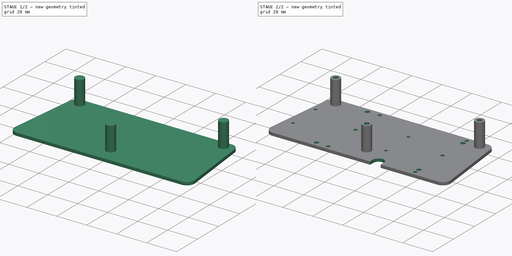
[diagram: build sequence overview — one tinted view per stage of 2, left to right]
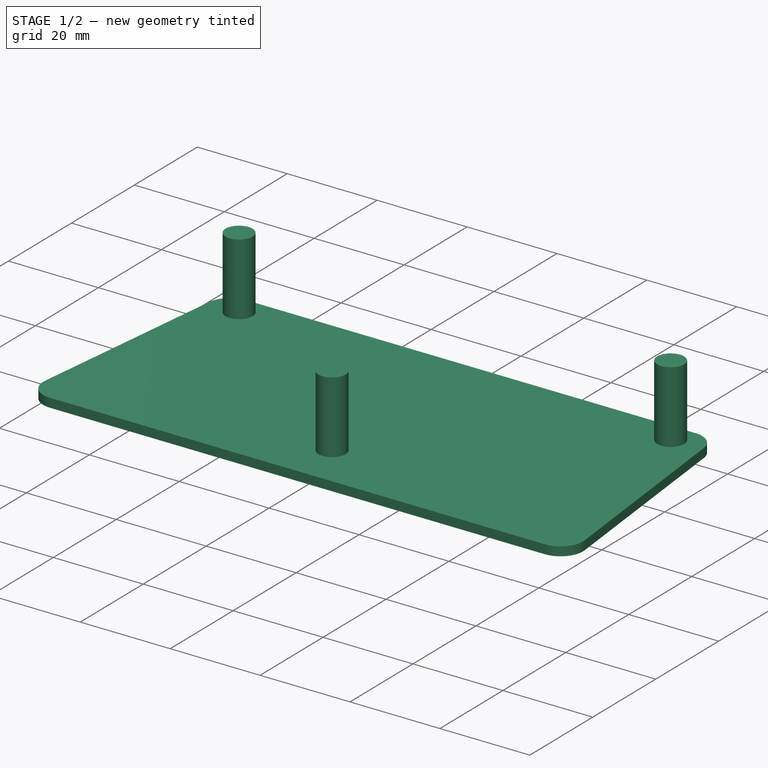
[diagram: stage 1 of 2 — iso view after this stage's code; geometry added in this stage tinted green]
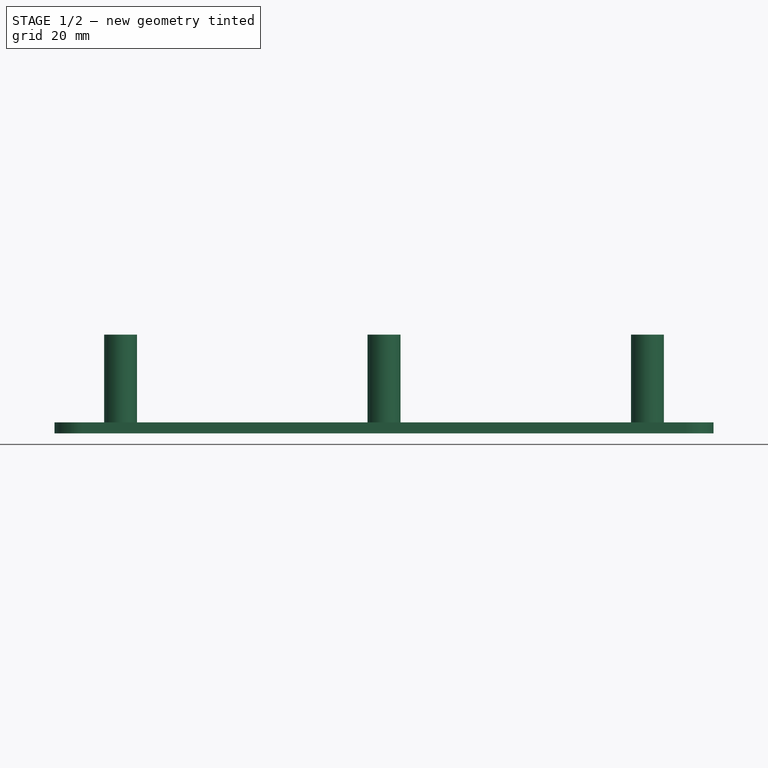
[diagram: stage 1 of 2 — front view after this stage's code; geometry added in this stage tinted green]
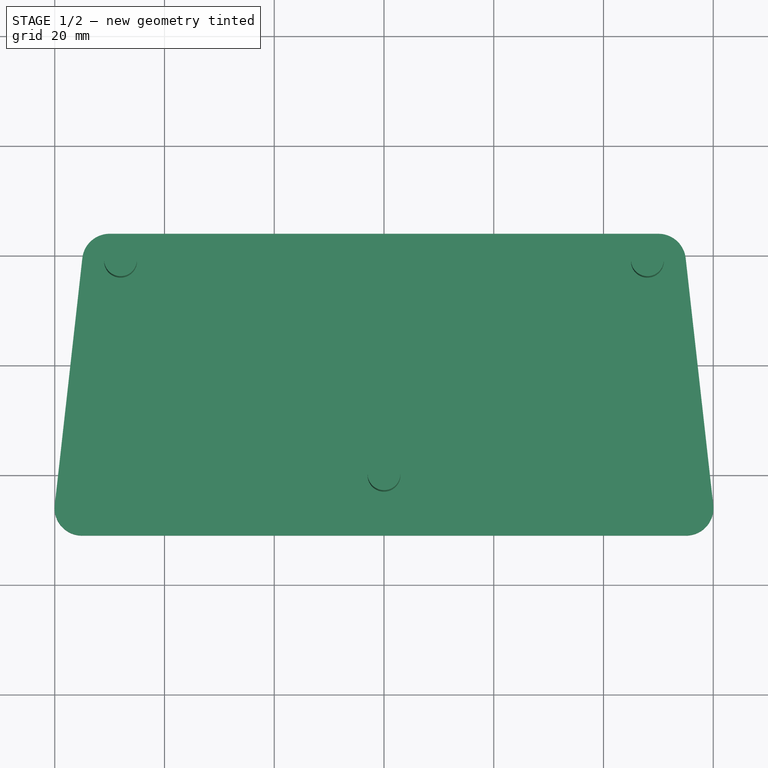
[diagram: stage 1 of 2 — top view after this stage's code; geometry added in this stage tinted green]
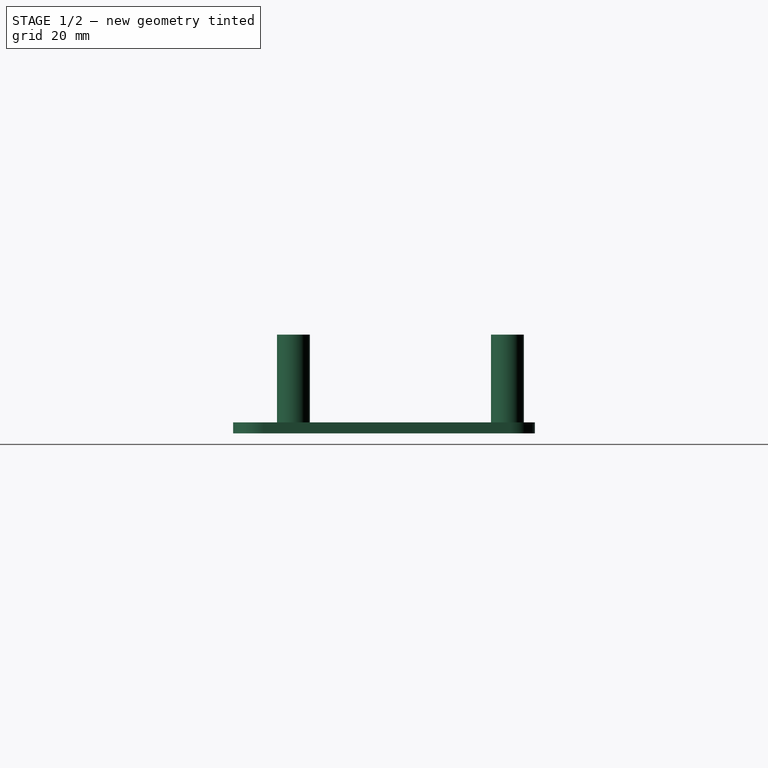
[diagram: stage 1 of 2 — right view after this stage's code; geometry added in this stage tinted green]
FCSTD DOCUMENT  (FreeCAD 0.20R)
Label: T07_controller_standoff
License: All rights reserved
LicenseURL: http://en.wikipedia.org/wiki/All_rights_reserved
objects: Sketcher::SketchObject×3, PartDesign::Pad×2, PartDesign::Pocket×1, PartDesign::Body×1
note: 10 computed .brp shape members not serialized (recipe doc carries the construction recipe); baked Part::Feature solids carry a one-line shape summary decoded from their .brp

FEATURE [Sketcher::SketchObject] Sketch
  FullyConstrained = true
  MapMode = 5
  Support = -> [XY_Plane]
  sketch-geometry (8):
    g0: ArcOfCircle CenterX=-50 CenterY=39 CenterZ=0 NormalX=0 NormalY=0 NormalZ=1 AngleXU=0 Radius=5 StartAngle=1.5708 EndAngle=3.03026
    g1: ArcOfCircle CenterX=50 CenterY=39 CenterZ=0 NormalX=0 NormalY=0 NormalZ=1 AngleXU=0 Radius=5 StartAngle=0.111337 EndAngle=1.5708
    g2: LineSegment StartX=-50 StartY=44 StartZ=0 EndX=50 EndY=44 EndZ=0
    g3: LineSegment StartX=54.969 StartY=39.5555 StartZ=0 EndX=60 EndY=-5.44447 EndZ=0
    g4: LineSegment StartX=-54.969 StartY=39.5555 StartZ=0 EndX=-60 EndY=-5.44447 EndZ=0
    g5: LineSegment StartX=-55.031 StartY=-11 StartZ=0 EndX=55.031 EndY=-11 EndZ=0
    g6: ArcOfCircle CenterX=55.031 CenterY=-6 CenterZ=0 NormalX=0 NormalY=0 NormalZ=1 AngleXU=0 Radius=5 StartAngle=4.71239 EndAngle=6.39452
    g7: ArcOfCircle CenterX=-55.031 CenterY=-6 CenterZ=0 NormalX=0 NormalY=0 NormalZ=1 AngleXU=0 Radius=5 StartAngle=3.03026 EndAngle=4.71239
  constraints (18):
    c: Symmetric(g0,g1,g-2)
    c: Coincident(g2,g1)
    c: Symmetric(g0,g1,g-2)
    c: Tangent(g2,g0) = 1.5708
    c: Radius(g1) = 5
    c: Symmetric(g3,g4,g-2)
    c: Tangent(g3,g1) = 1.5708
    c: Tangent(g4,g0) = -1.5708
    c: Equal(g0,g7)
    c: Equal(g1,g6)
    c: Tangent(g6,g3) = 1.5708
    c: Tangent(g7,g4) = -1.5708
    c: Tangent(g6,g5) = -1.5708
    c: DistanceX(g4,g3) = 120
    c: DistanceY(g6,g-1) = 6
    c: DistanceY(g-1,g1) = 39
    c: DistanceX(g0,g1) = 100
    c: Tangent(g5,g7) = -1.5708
FEATURE [PartDesign::Pad] Pad
  Direction = (0,0,1)
  Length = 2
  Length2 = 10
  Profile = -> Sketch
  ReferenceAxis = -> Sketch [N_Axis]
  Type = 0
FEATURE [Sketcher::SketchObject] Sketch001
  FullyConstrained = true
  MapMode = 5
  Placement = pos=(0,0,2) rot=(0,0,1;0rad)
  sketch-geometry (3):
    g0: Circle CenterX=0 CenterY=0 CenterZ=0 NormalX=0 NormalY=0 NormalZ=1 AngleXU=0 Radius=3
    g1: Circle CenterX=-48 CenterY=39 CenterZ=0 NormalX=0 NormalY=0 NormalZ=1 AngleXU=0 Radius=3
    g2: Circle CenterX=48 CenterY=39 CenterZ=0 NormalX=0 NormalY=0 NormalZ=1 AngleXU=0 Radius=3
  constraints (7):
    c: Coincident(g0,g-1)
    c: Symmetric(g2,g1,g-2)
    c: DistanceY(g0,g2) = 39
    c: DistanceX(g0,g2) = 48
    c: Equal(g1,g2)
    c: Equal(g2,g0)
    c: Diameter(g1) = 6
FEATURE [Sketcher::SketchObject] Sketch002
  FullyConstrained = true
  MapMode = 5
  Placement = pos=(0,0,0) rot=(1,0,0;3.14159rad)
  sketch-geometry (37):
    g0: Circle CenterX=0 CenterY=0 CenterZ=0 NormalX=0 NormalY=0 NormalZ=1 AngleXU=0 Radius=1.6
    g1: Circle CenterX=-48 CenterY=-39 CenterZ=0 NormalX=0 NormalY=0 NormalZ=1 AngleXU=0 Radius=1.6
    g2: Circle CenterX=48 CenterY=-39 CenterZ=0 NormalX=0 NormalY=0 NormalZ=1 AngleXU=0 Radius=1.6
    g3: LineSegment StartX=-53 StartY=-27 StartZ=0 EndX=9 EndY=-27 EndZ=0
    g4: LineSegment StartX=9 StartY=-27 StartZ=0 EndX=9 EndY=-5.5 EndZ=0
    g5: LineSegment StartX=9 StartY=-5.5 StartZ=0 EndX=-53 EndY=-5.5 EndZ=0
    g6: LineSegment StartX=-53 StartY=-5.5 StartZ=0 EndX=-53 EndY=-27 EndZ=0
    g7: LineSegment StartX=-20 StartY=8 StartZ=0 EndX=38 EndY=8 EndZ=0
    g8: LineSegment StartX=38 StartY=8 StartZ=0 EndX=38 EndY=-41 EndZ=0
    g9: LineSegment StartX=38 StartY=-41 StartZ=0 EndX=-20 EndY=-41 EndZ=0
    g10: LineSegment StartX=-20 StartY=-41 StartZ=0 EndX=-20 EndY=8 EndZ=0
    g11: Circle CenterX=9 CenterY=-5.5 CenterZ=0 NormalX=0 NormalY=0 NormalZ=1 AngleXU=0 Radius=1
    g12: Circle CenterX=9 CenterY=-27 CenterZ=0 NormalX=0 NormalY=0 NormalZ=1 AngleXU=0 Radius=1
    g13: Circle CenterX=38 CenterY=8 CenterZ=0 NormalX=0 NormalY=0 NormalZ=1 AngleXU=0 Radius=1.2
    g14: Circle CenterX=38 CenterY=-41 CenterZ=0 NormalX=0 NormalY=0 NormalZ=1 AngleXU=0 Radius=1.2
    g15: Circle CenterX=-20 CenterY=-41 CenterZ=0 NormalX=0 NormalY=0 NormalZ=1 AngleXU=0 Radius=1.2
    g16: Circle CenterX=-53 CenterY=-27 CenterZ=0 NormalX=0 NormalY=0 NormalZ=1 AngleXU=0 Radius=1
    g17: Circle CenterX=-53 CenterY=-5.5 CenterZ=0 NormalX=0 NormalY=0 NormalZ=1 AngleXU=0 Radius=1
    g18: Circle CenterX=-20 CenterY=8 CenterZ=0 NormalX=0 NormalY=0 NormalZ=1 AngleXU=0 Radius=1.2
    g19: LineSegment StartX=-43.5 StartY=11.5 StartZ=0 EndX=41.5 EndY=11.5 EndZ=0
    g20: LineSegment StartX=41.5 StartY=11.5 StartZ=0 EndX=41.5 EndY=-44.5 EndZ=0
    g21: LineSegment StartX=41.5 StartY=-44.5 StartZ=0 EndX=-43.5 EndY=-44.5 EndZ=0
    g22: LineSegment StartX=-43.5 StartY=-44.5 StartZ=0 EndX=-43.5 EndY=11.5 EndZ=0
    g23: ArcOfCircle CenterX=13.5 CenterY=12 CenterZ=0 NormalX=0 NormalY=0 NormalZ=1 AngleXU=0 Radius=3.5 StartAngle=0 EndAngle=3.14159
    g24: ArcOfCircle CenterX=13.5 CenterY=8 CenterZ=0 NormalX=0 NormalY=0 NormalZ=1 AngleXU=0 Radius=3.5 StartAngle=3.14159 EndAngle=6.28319
    g25: LineSegment StartX=10 StartY=12 StartZ=0 EndX=10 EndY=8 EndZ=0
    g26: LineSegment StartX=17 StartY=8 StartZ=0 EndX=17 EndY=12 EndZ=0
    g27: LineSegment StartX=-28.1 StartY=-16.455 StartZ=0 EndX=38 EndY=-16.455 EndZ=0
    g28: LineSegment StartX=-28.1 StartY=7.74 StartZ=0 EndX=-28.1 EndY=-40.65 EndZ=0
    g29: LineSegment StartX=38 StartY=4.5 StartZ=0 EndX=38 EndY=-37.41 EndZ=0
    g30: Circle CenterX=-28.1 CenterY=7.74 CenterZ=0 NormalX=0 NormalY=0 NormalZ=1 AngleXU=0 Radius=1.45
    g31: Circle CenterX=38 CenterY=4.5 CenterZ=0 NormalX=0 NormalY=0 NormalZ=1 AngleXU=0 Radius=1.45
    g32: Circle CenterX=-28.1 CenterY=-40.65 CenterZ=0 NormalX=0 NormalY=0 NormalZ=1 AngleXU=0 Radius=1.45
    g33: Circle CenterX=38 CenterY=-37.41 CenterZ=0 NormalX=0 NormalY=0 NormalZ=1 AngleXU=0 Radius=1.45
    g34: LineSegment StartX=-20 StartY=-18 StartZ=0 EndX=38 EndY=-18 EndZ=0
    g35: Circle CenterX=-20 CenterY=-18 CenterZ=0 NormalX=0 NormalY=0 NormalZ=1 AngleXU=0 Radius=1.2
    g36: Circle CenterX=38 CenterY=-18 CenterZ=0 NormalX=0 NormalY=0 NormalZ=1 AngleXU=0 Radius=1.2
  constraints (95):
    c: Coincident(g0,g-1)
    c: Symmetric(g1,g2,g-2)
    c: DistanceY(g1,g0) = 39
    c: DistanceX(g1,g0) = 48
    c: Equal(g1,g0)
    c: Equal(g0,g2)
    c: Diameter(g1) = 3.2
    c: Coincident(g3,g4)
    c: Coincident(g4,g5)
    c: Coincident(g5,g6)
    c: Coincident(g6,g3)
    c: Horizontal(g3)
    c: Horizontal(g5)
    c: Vertical(g4)
    c: Vertical(g6)
    c: Coincident(g7,g8)
    c: Coincident(g8,g9)
    c: Coincident(g9,g10)
    c: Coincident(g10,g7)
    c: Horizontal(g7)
    c: Horizontal(g9)
    c: Vertical(g8)
    c: Vertical(g10)
    c: DistanceY(g4,g4) = 21.5
    c: DistanceY(g8,g8) = 49
    c: DistanceX(g3,g3) = 62
    c: DistanceX(g9,g9) = 58
    c: DistanceX(g0,g7) = 38
    c: DistanceY(g4,g0) = 5.5
    c: DistanceY(g0,g7) = 8
    c: Coincident(g11,g4)
    c: Coincident(g12,g3)
    c: Coincident(g13,g7)
    c: Coincident(g14,g8)
    c: Coincident(g15,g9)
    c: Coincident(g16,g3)
    c: Coincident(g17,g5)
    c: Coincident(g18,g7)
    c: Equal(g17,g11)
    c: Equal(g17,g16)
    c: Equal(g11,g12)
    c: Equal(g18,g13)
    c: Equal(g18,g15)
    c: Equal(g13,g14)
    c: Diameter(g11) = 2
    c: Diameter(g13) = 2.4
    c: Coincident(g19,g20)
    c: Coincident(g20,g21)
    c: Coincident(g21,g22)
    c: Coincident(g22,g19)
    c: Horizontal(g19)
    c: Horizontal(g21)
    c: Vertical(g20)
    c: Vertical(g22)
    c: DistanceY(g20,g20) = 56
    c: DistanceY(g18,g19) = 3.5
    c: DistanceX(g21,g21) = 85
    c: DistanceX(g0,g11) = 9
    c: DistanceX(g13,g19) = 3.5
    c: Tangent(g23,g25) = -1.5708
    c: Tangent(g25,g24) = -1.5708
    c: Tangent(g24,g26) = -1.5708
    c: Tangent(g26,g23) = -1.5708
    c: Equal(g23,g24)
    c: Vertical(g25)
    c: Diameter(g24) = 7
    c: DistanceX(g0,g24) = 13.5
    c: DistanceY(g0,g24) = 8
    c: DistanceY(g24,g23) = 4
    c: Horizontal(g27)
    c: DistanceY(g28,g28) = 48.39
    c: DistanceY(g29,g29) = 41.91
    c: DistanceX(g27,g27) = 66.1
    c: PointOnObject(g27,g28)
    c: PointOnObject(g27,g29)
    c: Symmetric(g28,g28,g27)
    c: Symmetric(g29,g29,g27)
    c: Coincident(g30,g28)
    c: Coincident(g31,g29)
    c: Coincident(g32,g28)
    c: Coincident(g33,g29)
    c: Equal(g30,g31)
    c: Equal(g31,g33)
    c: Equal(g30,g32)
    c: Diameter(g30) = 2.9
    c: DistanceX(g0,g31) = 38
    c: DistanceY(g0,g31) = 4.5
    c: PointOnObject(g34,g10)
    c: PointOnObject(g34,g8)
    c: DistanceY(g15,g34) = 23
    c: Horizontal(g34)
    c: Coincident(g35,g34)
    c: Coincident(g36,g34)
    c: Equal(g35,g36)
    c: Equal(g18,g35)
FEATURE [PartDesign::Pad] Pad001
  BaseFeature = -> Pad
  Direction = (0,0,1)
  Length = 16
  Length2 = 10
  Profile = -> Sketch001
  ReferenceAxis = -> Sketch001 [N_Axis]
  Type = 0
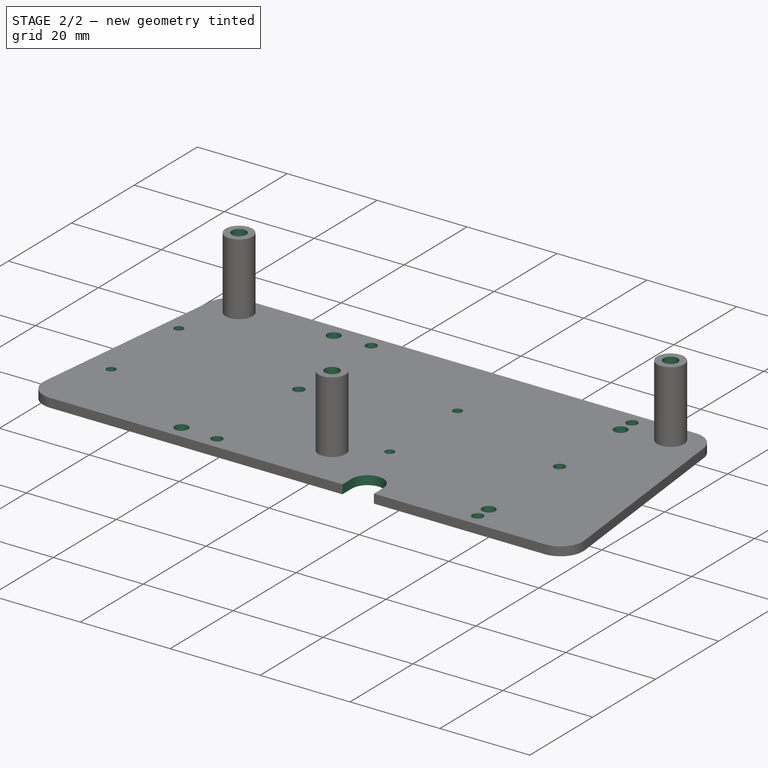
[diagram: stage 2 of 2 — iso view after this stage's code; geometry added in this stage tinted green]
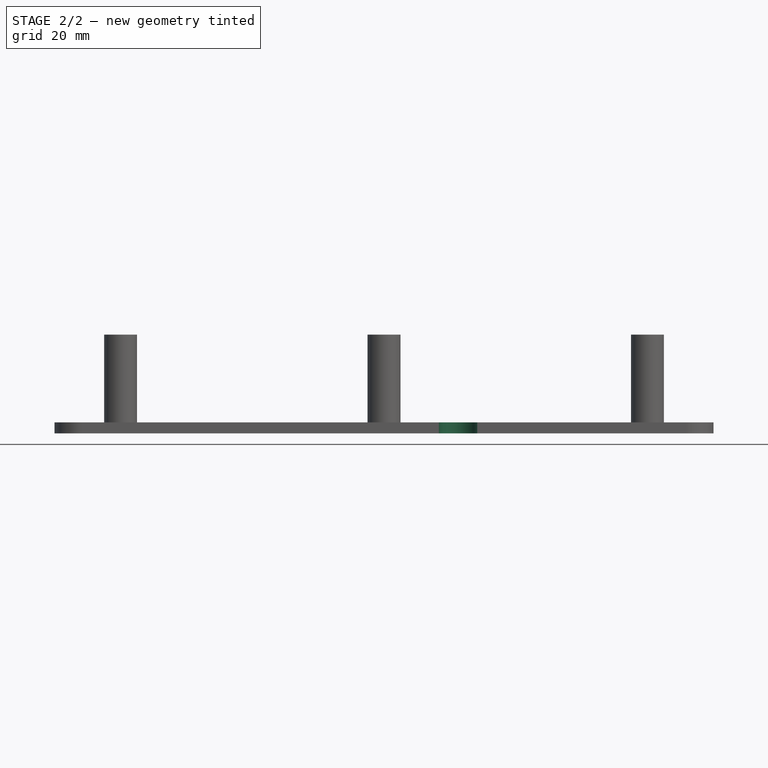
[diagram: stage 2 of 2 — front view after this stage's code; geometry added in this stage tinted green]
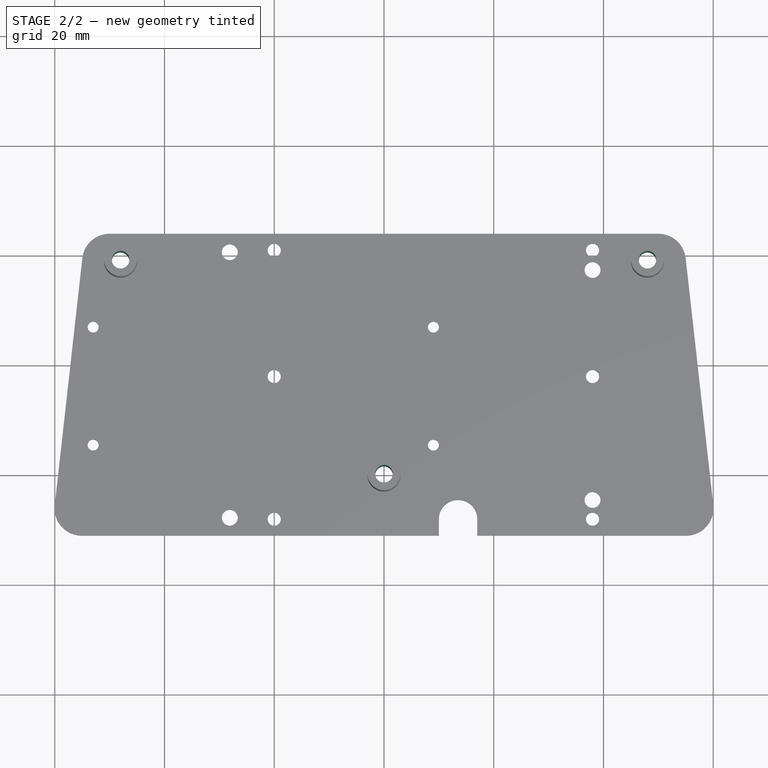
[diagram: stage 2 of 2 — top view after this stage's code; geometry added in this stage tinted green]
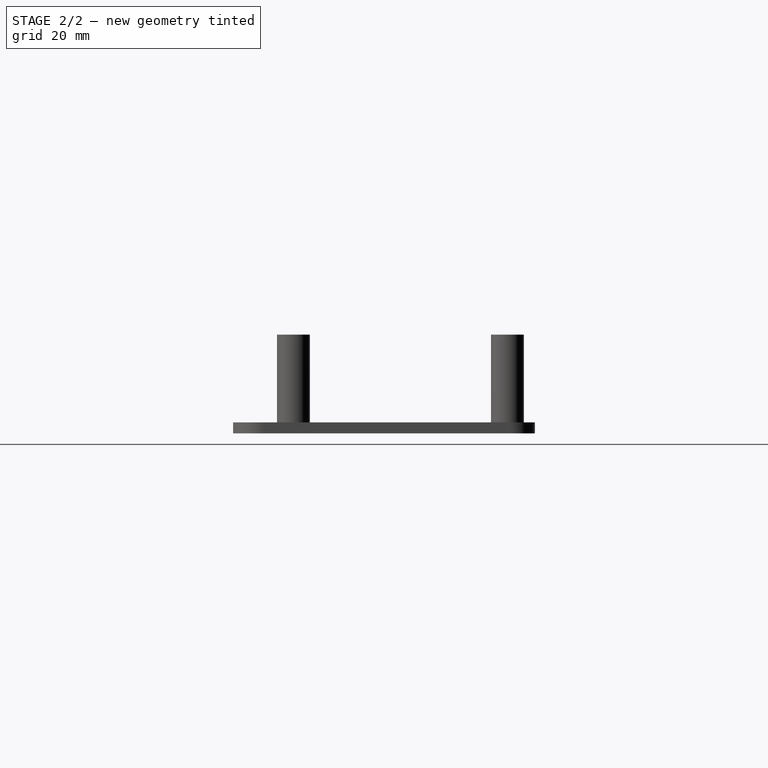
[diagram: stage 2 of 2 — right view after this stage's code; geometry added in this stage tinted green]
FEATURE [PartDesign::Pocket] Pocket
  BaseFeature = -> Pad001
  Direction = (0,0,1)
  Length = 5
  Length2 = 5
  Profile = -> Sketch002
  ReferenceAxis = -> Sketch002 [N_Axis]
  Type = 1
FEATURE [PartDesign::Body] Body  label="T07_controller_standoff"
  Group = -> [Sketch,Pad,Sketch001,Sketch002,Pad001,Pocket]
  Origin = -> Origin
  Placement = pos=(0,44,27.4) rot=(0,0,1;0rad)
  Tip = -> Pocket
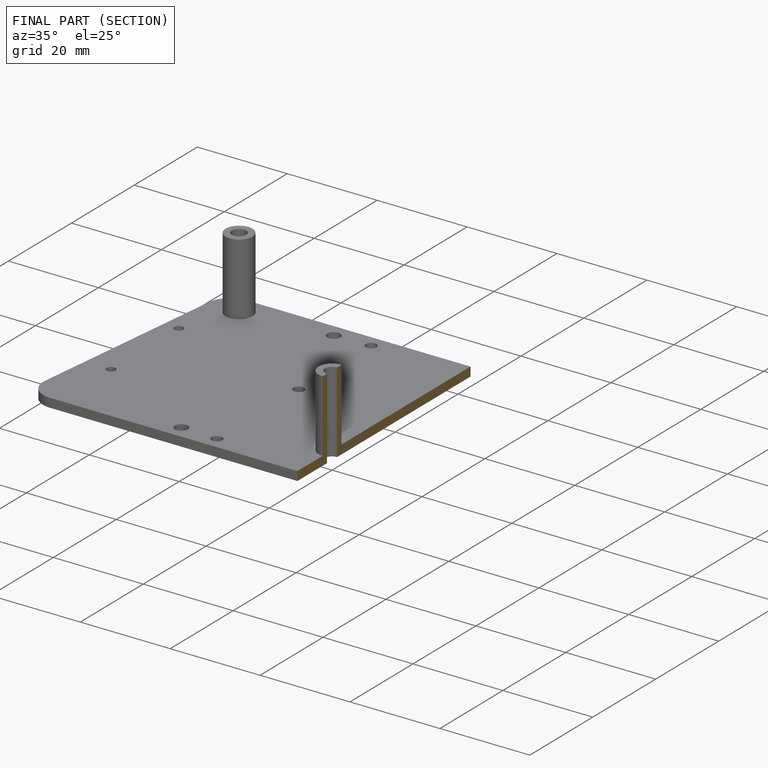
[diagram: finished part — half-section view (interior)]
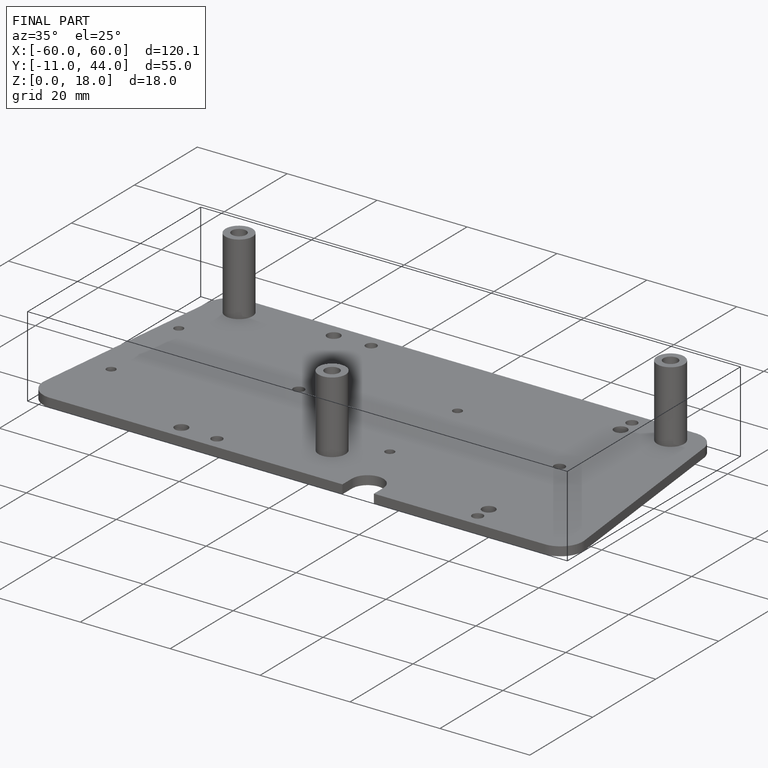
[diagram: finished part — iso view with bounding-box wireframe]
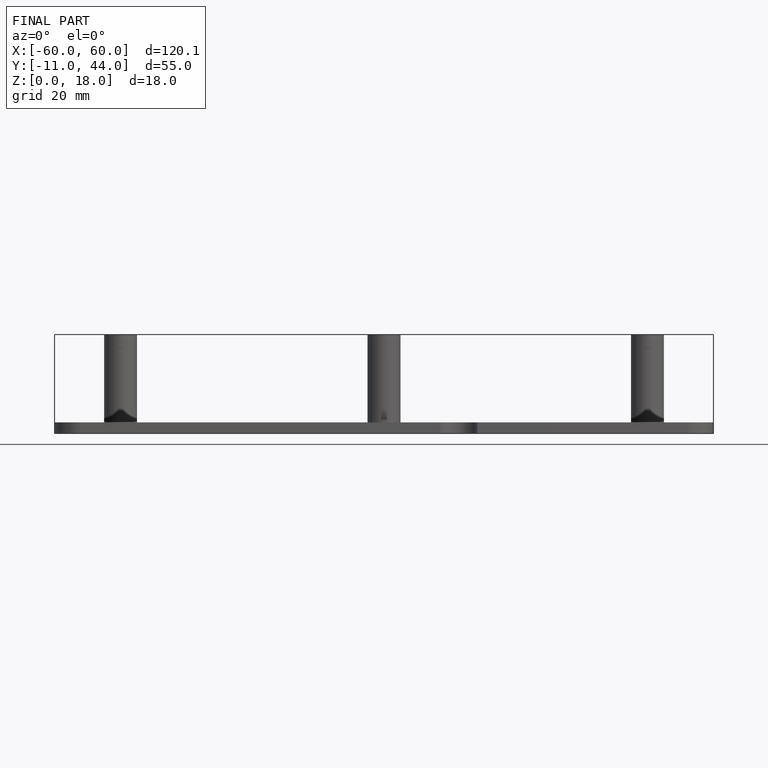
[diagram: finished part — front view with bounding-box wireframe]
